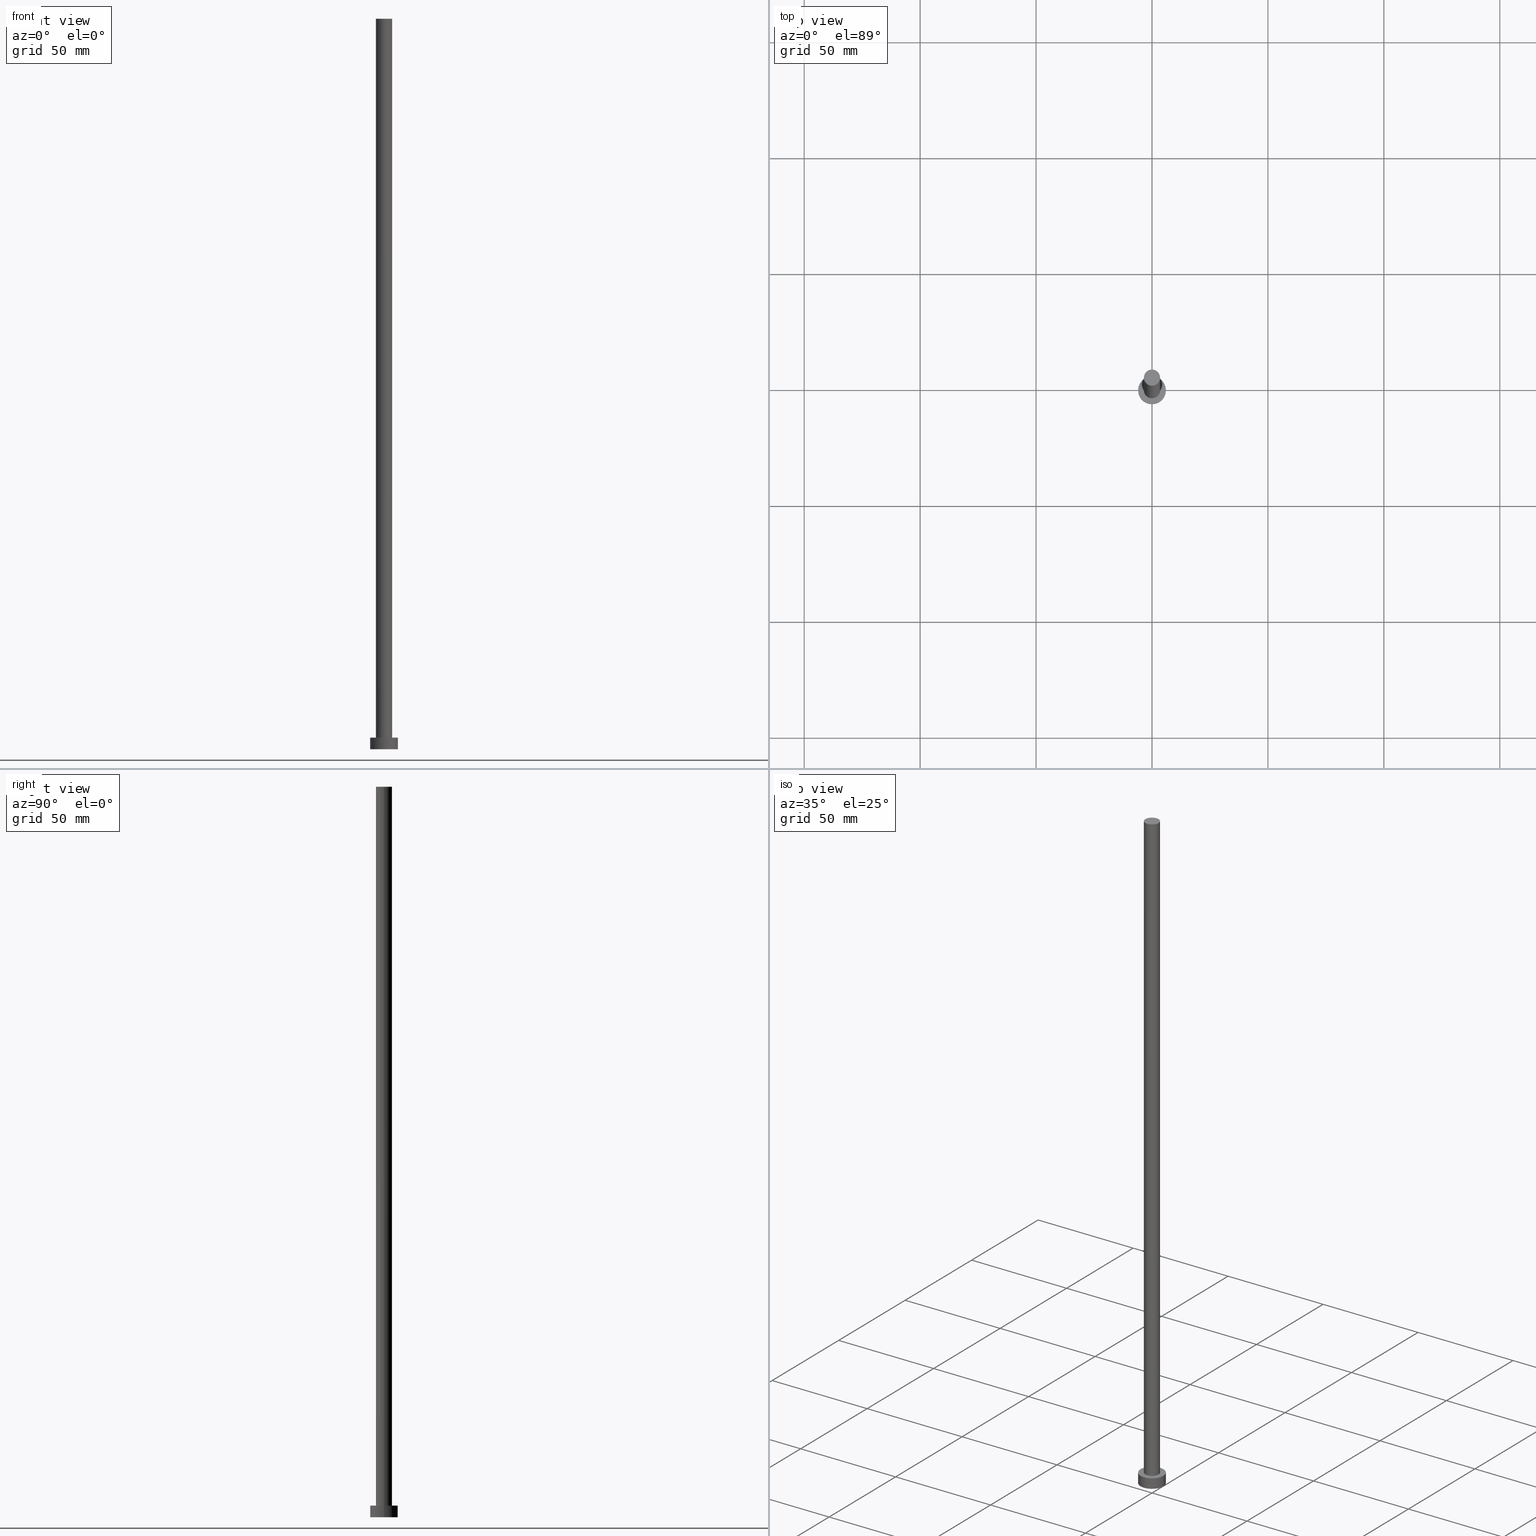
[diagram: canonical four-view strip — front | top / right | iso, engineering-drawing reading convention]
A machine part, canonical four-view strip (front | top / right | iso — engineering-drawing reading convention). The complete STEP part file that produces these views, byte-faithful:
ISO-10303-21;
HEADER;
FILE_DESCRIPTION (( 'STEP AP203' ),
    '1' );
FILE_NAME ('7363.STEP',
    '2023-02-13T11:46:08',
    ( '' ),
    ( '' ),
    'SwSTEP 2.0',
    'SolidWorks 2019',
    '' );
FILE_SCHEMA (( 'CONFIG_CONTROL_DESIGN' ));
ENDSEC;

DATA;
#1 = EDGE_CURVE ( 'NONE', #251, #157, #139, .T. ) ;
#2 = FACE_OUTER_BOUND ( 'NONE', #189, .T. ) ;
#3 = DIRECTION ( 'NONE',  ( 0.000000000000000000, 0.000000000000000000, 1.000000000000000000 ) ) ;
#4 = APPROVAL ( #244, 'NEUR�EN�' ) ;
#5 =( NAMED_UNIT ( * ) PLANE_ANGLE_UNIT ( ) SI_UNIT ( $, .RADIAN. ) );
#6 = CARTESIAN_POINT ( 'NONE',  ( 0.000000000000000000, 0.000000000000000000, 315.0000000000000000 ) ) ;
#7 = PERSON_AND_ORGANIZATION_ROLE ( 'design_supplier' ) ;
#8 = EDGE_CURVE ( 'NONE', #138, #192, #212, .T. ) ;
#9 = PERSON_AND_ORGANIZATION ( #95, #82 ) ;
#10 = ORIENTED_EDGE ( 'NONE', *, *, #74, .F. ) ;
#11 = ADVANCED_FACE ( 'NONE', ( #99 ), #143, .F. ) ;
#12 = DATE_TIME_ROLE ( 'creation_date' ) ;
#13 = FACE_BOUND ( 'NONE', #51, .T. ) ;
#14 = CARTESIAN_POINT ( 'NONE',  ( 3.500000000000000000, 4.286263797015736595E-16, 315.0000000000000000 ) ) ;
#15 = CARTESIAN_POINT ( 'NONE',  ( -3.500000000000000000, 0.000000000000000000, 315.0000000000000000 ) ) ;
#16 = EDGE_CURVE ( 'NONE', #173, #39, #75, .T. ) ;
#17 = CIRCLE ( 'NONE', #122, 6.000000000000000888 ) ;
#18 = CARTESIAN_POINT ( 'NONE',  ( 0.000000000000000000, 0.000000000000000000, 0.000000000000000000 ) ) ;
#19 = DIRECTION ( 'NONE',  ( 0.000000000000000000, 0.000000000000000000, 1.000000000000000000 ) ) ;
#20 = ADVANCED_FACE ( 'NONE', ( #13, #213 ), #98, .T. ) ;
#21 = FACE_OUTER_BOUND ( 'NONE', #55, .T. ) ;
#22 = DIRECTION ( 'NONE',  ( 1.000000000000000000, 0.000000000000000000, 0.000000000000000000 ) ) ;
#23 = CIRCLE ( 'NONE', #31, 3.500000000000000000 ) ;
#24 = CYLINDRICAL_SURFACE ( 'NONE', #168, 6.000000000000000888 ) ;
#25 = DIRECTION ( 'NONE',  ( -0.000000000000000000, -0.000000000000000000, -1.000000000000000000 ) ) ;
#26 = COORDINATED_UNIVERSAL_TIME_OFFSET ( 1, 0, .AHEAD. ) ;
#27 = PERSON_AND_ORGANIZATION_ROLE ( 'creator' ) ;
#28 = COORDINATED_UNIVERSAL_TIME_OFFSET ( 1, 0, .AHEAD. ) ;
#29 = AXIS2_PLACEMENT_3D ( 'NONE', #231, #44, #42 ) ;
#30 = ORIENTED_EDGE ( 'NONE', *, *, #8, .F. ) ;
#31 = AXIS2_PLACEMENT_3D ( 'NONE', #164, #221, #59 ) ;
#32 = CALENDAR_DATE ( 2023, 13, 2 ) ;
#33 = ORIENTED_EDGE ( 'NONE', *, *, #16, .F. ) ;
#34 = CARTESIAN_POINT ( 'NONE',  ( 0.000000000000000000, 0.000000000000000000, 5.000000000000000000 ) ) ;
#35 = CARTESIAN_POINT ( 'NONE',  ( 0.000000000000000000, 0.000000000000000000, 315.0000000000000000 ) ) ;
#36 = CC_DESIGN_PERSON_AND_ORGANIZATION_ASSIGNMENT ( #47, #27, ( #209 ) ) ;
#37 = EDGE_LOOP ( 'NONE', ( #70, #176 ) ) ;
#38 = VERTEX_POINT ( 'NONE', #160 ) ;
#39 = VERTEX_POINT ( 'NONE', #118 ) ;
#40 = DIRECTION ( 'NONE',  ( -0.000000000000000000, -0.000000000000000000, -1.000000000000000000 ) ) ;
#41 = CC_DESIGN_DATE_AND_TIME_ASSIGNMENT ( #137, #12, ( #148 ) ) ;
#42 = DIRECTION ( 'NONE',  ( -1.000000000000000000, 0.000000000000000000, 0.000000000000000000 ) ) ;
#43 =( GEOMETRIC_REPRESENTATION_CONTEXT ( 3 ) GLOBAL_UNCERTAINTY_ASSIGNED_CONTEXT ( ( #104 ) ) GLOBAL_UNIT_ASSIGNED_CONTEXT ( ( #235, #5, #145 ) ) REPRESENTATION_CONTEXT ( 'NONE', 'WORKASPACE' ) );
#44 = DIRECTION ( 'NONE',  ( -0.000000000000000000, -0.000000000000000000, -1.000000000000000000 ) ) ;
#45 = DIRECTION ( 'NONE',  ( 0.000000000000000000, 0.000000000000000000, 1.000000000000000000 ) ) ;
#46 = EDGE_CURVE ( 'NONE', #192, #138, #101, .T. ) ;
#47 = PERSON_AND_ORGANIZATION ( #95, #82 ) ;
#48 = DATE_AND_TIME ( #151, #156 ) ;
#49 = AXIS2_PLACEMENT_3D ( 'NONE', #128, #185, #63 ) ;
#50 = DATE_AND_TIME ( #153, #113 ) ;
#51 = EDGE_LOOP ( 'NONE', ( #93, #229 ) ) ;
#52 = CARTESIAN_POINT ( 'NONE',  ( 0.000000000000000000, 0.000000000000000000, 0.000000000000000000 ) ) ;
#53 = EDGE_LOOP ( 'NONE', ( #135, #30 ) ) ;
#54 = LOCAL_TIME ( 12, 46, 8.000000000000000000, #28 ) ;
#55 = EDGE_LOOP ( 'NONE', ( #76, #250, #191, #140 ) ) ;
#56 = ORIENTED_EDGE ( 'NONE', *, *, #240, .T. ) ;
#57 = ADVANCED_BREP_SHAPE_REPRESENTATION ( '7363', ( #249, #159 ), #43 ) ;
#58 = DIRECTION ( 'NONE',  ( 1.000000000000000000, 0.000000000000000000, 0.000000000000000000 ) ) ;
#59 = DIRECTION ( 'NONE',  ( 1.000000000000000000, 0.000000000000000000, 0.000000000000000000 ) ) ;
#60 = CARTESIAN_POINT ( 'NONE',  ( 6.000000000000000888, 7.347880794884120722E-16, 5.000000000000000000 ) ) ;
#61 = APPLICATION_PROTOCOL_DEFINITION ( 'international standard', 'config_control_design', 1994, #182 ) ;
#62 = AXIS2_PLACEMENT_3D ( 'NONE', #78, #45, #65 ) ;
#63 = DIRECTION ( 'NONE',  ( -1.000000000000000000, 0.000000000000000000, 0.000000000000000000 ) ) ;
#64 = APPROVAL_PERSON_ORGANIZATION ( #9, #225, #187 ) ;
#65 = DIRECTION ( 'NONE',  ( 1.000000000000000000, 0.000000000000000000, 0.000000000000000000 ) ) ;
#66 = EDGE_CURVE ( 'NONE', #208, #138, #161, .T. ) ;
#67 = APPROVAL_DATE_TIME ( #48, #4 ) ;
#68 = VECTOR ( 'NONE', #181, 1000.000000000000000 ) ;
#69 = CC_DESIGN_APPROVAL ( #225, ( #148 ) ) ;
#70 = ORIENTED_EDGE ( 'NONE', *, *, #71, .T. ) ;
#71 = EDGE_CURVE ( 'NONE', #38, #208, #86, .T. ) ;
#72 = DIRECTION ( 'NONE',  ( 0.000000000000000000, 0.000000000000000000, 1.000000000000000000 ) ) ;
#73 = ORIENTED_EDGE ( 'NONE', *, *, #66, .T. ) ;
#74 = EDGE_CURVE ( 'NONE', #251, #173, #230, .T. ) ;
#75 = LINE ( 'NONE', #14, #68 ) ;
#76 = ORIENTED_EDGE ( 'NONE', *, *, #124, .F. ) ;
#77 = CC_DESIGN_APPROVAL ( #4, ( #209 ) ) ;
#78 = CARTESIAN_POINT ( 'NONE',  ( 0.000000000000000000, 0.000000000000000000, 5.000000000000000000 ) ) ;
#79 = DIRECTION ( 'NONE',  ( -1.000000000000000000, 0.000000000000000000, 0.000000000000000000 ) ) ;
#80 = ADVANCED_FACE ( 'NONE', ( #193 ), #94, .T. ) ;
#81 = CARTESIAN_POINT ( 'NONE',  ( 0.000000000000000000, 0.000000000000000000, 315.0000000000000000 ) ) ;
#82 = ORGANIZATION ( 'NEUR�EN�', 'NEUR�EN�', '' ) ;
#83 = ADVANCED_FACE ( 'NONE', ( #21 ), #109, .T. ) ;
#84 = CARTESIAN_POINT ( 'NONE',  ( 3.500000000000000000, 4.286263797015736595E-16, 315.0000000000000000 ) ) ;
#85 = PERSON_AND_ORGANIZATION ( #95, #82 ) ;
#86 = CIRCLE ( 'NONE', #167, 6.000000000000000888 ) ;
#87 = SHAPE_DEFINITION_REPRESENTATION ( #111, #57 ) ;
#88 = AXIS2_PLACEMENT_3D ( 'NONE', #81, #166, #203 ) ;
#89 = DATE_AND_TIME ( #110, #91 ) ;
#90 = ORIENTED_EDGE ( 'NONE', *, *, #124, .T. ) ;
#91 = LOCAL_TIME ( 12, 46, 8.000000000000000000, #186 ) ;
#92 = AXIS2_PLACEMENT_3D ( 'NONE', #6, #149, #100 ) ;
#93 = ORIENTED_EDGE ( 'NONE', *, *, #108, .F. ) ;
#94 = CYLINDRICAL_SURFACE ( 'NONE', #29, 6.000000000000000888 ) ;
#95 = PERSON ( 'NEUR�EN�', 'NEUR�EN�', 'NEUR�EN�', ('NEUR�EN�'), ('NEUR�EN�'), ('NEUR�EN�') ) ;
#96 = DIRECTION ( 'NONE',  ( 1.000000000000000000, 0.000000000000000000, -0.000000000000000000 ) ) ;
#97 = CC_DESIGN_PERSON_AND_ORGANIZATION_ASSIGNMENT ( #171, #223, ( #148 ) ) ;
#98 = PLANE ( 'NONE',  #130 ) ;
#99 = FACE_OUTER_BOUND ( 'NONE', #53, .T. ) ;
#100 = DIRECTION ( 'NONE',  ( 1.000000000000000000, 0.000000000000000000, 0.000000000000000000 ) ) ;
#101 = CIRCLE ( 'NONE', #242, 6.000000000000000888 ) ;
#102 = CARTESIAN_POINT ( 'NONE',  ( 6.000000000000000888, 7.347880794884120722E-16, 0.000000000000000000 ) ) ;
#103 = CC_DESIGN_DATE_AND_TIME_ASSIGNMENT ( #89, #226, ( #243 ) ) ;
#104 = UNCERTAINTY_MEASURE_WITH_UNIT (LENGTH_MEASURE( 1.000000000000000082E-05 ), #235, 'distance_accuracy_value', 'NONE');
#105 = FACE_OUTER_BOUND ( 'NONE', #115, .T. ) ;
#106 = CARTESIAN_POINT ( 'NONE',  ( -3.500000000000000000, 0.000000000000000000, 315.0000000000000000 ) ) ;
#107 = AXIS2_PLACEMENT_3D ( 'NONE', #195, #19, #121 ) ;
#108 = EDGE_CURVE ( 'NONE', #157, #39, #218, .T. ) ;
#109 = CYLINDRICAL_SURFACE ( 'NONE', #177, 3.500000000000000000 ) ;
#110 = CALENDAR_DATE ( 2023, 13, 2 ) ;
#111 = PRODUCT_DEFINITION_SHAPE ( 'NONE', 'NONE',  #148 ) ;
#112 = PERSON_AND_ORGANIZATION ( #95, #82 ) ;
#113 = LOCAL_TIME ( 12, 46, 8.000000000000000000, #152 ) ;
#114 = DATE_AND_TIME ( #32, #54 ) ;
#115 = EDGE_LOOP ( 'NONE', ( #33, #10, #198, #120 ) ) ;
#116 = PERSON_AND_ORGANIZATION ( #95, #82 ) ;
#117 = ADVANCED_FACE ( 'NONE', ( #105 ), #219, .T. ) ;
#118 = CARTESIAN_POINT ( 'NONE',  ( 3.500000000000000000, 4.286263797015736595E-16, 5.000000000000000000 ) ) ;
#119 = DIRECTION ( 'NONE',  ( 1.000000000000000000, 0.000000000000000000, 0.000000000000000000 ) ) ;
#120 = ORIENTED_EDGE ( 'NONE', *, *, #108, .T. ) ;
#121 = DIRECTION ( 'NONE',  ( 1.000000000000000000, 0.000000000000000000, 0.000000000000000000 ) ) ;
#122 = AXIS2_PLACEMENT_3D ( 'NONE', #183, #3, #126 ) ;
#123 = DIRECTION ( 'NONE',  ( -0.000000000000000000, -0.000000000000000000, -1.000000000000000000 ) ) ;
#124 = EDGE_CURVE ( 'NONE', #173, #251, #247, .T. ) ;
#125 = AXIS2_PLACEMENT_3D ( 'NONE', #35, #216, #119 ) ;
#126 = DIRECTION ( 'NONE',  ( 1.000000000000000000, 0.000000000000000000, 0.000000000000000000 ) ) ;
#127 = DESIGN_CONTEXT ( 'detailed design', #132, 'design' ) ;
#128 = CARTESIAN_POINT ( 'NONE',  ( 0.000000000000000000, 0.000000000000000000, 315.0000000000000000 ) ) ;
#129 = PLANE ( 'NONE',  #88 ) ;
#130 = AXIS2_PLACEMENT_3D ( 'NONE', #162, #178, #253 ) ;
#131 = COORDINATED_UNIVERSAL_TIME_OFFSET ( 1, 0, .AHEAD. ) ;
#132 = APPLICATION_CONTEXT ( 'configuration controlled 3d designs of mechanical parts and assemblies' ) ;
#133 = MECHANICAL_CONTEXT ( 'NONE', #182, 'mechanical' ) ;
#134 = APPROVAL_STATUS ( 'not_yet_approved' ) ;
#135 = ORIENTED_EDGE ( 'NONE', *, *, #46, .F. ) ;
#136 = PERSON_AND_ORGANIZATION ( #95, #82 ) ;
#137 = DATE_AND_TIME ( #224, #252 ) ;
#138 = VERTEX_POINT ( 'NONE', #102 ) ;
#139 = LINE ( 'NONE', #15, #238 ) ;
#140 = ORIENTED_EDGE ( 'NONE', *, *, #1, .F. ) ;
#141 = ORIENTED_EDGE ( 'NONE', *, *, #66, .F. ) ;
#142 = CLOSED_SHELL ( 'NONE', ( #83, #80, #204, #20, #11, #117, #222 ) ) ;
#143 = PLANE ( 'NONE',  #234 ) ;
#144 = CC_DESIGN_SECURITY_CLASSIFICATION ( #243, ( #209 ) ) ;
#145 =( NAMED_UNIT ( * ) SI_UNIT ( $, .STERADIAN. ) SOLID_ANGLE_UNIT ( ) );
#146 = CARTESIAN_POINT ( 'NONE',  ( 0.000000000000000000, 0.000000000000000000, 5.000000000000000000 ) ) ;
#147 = DIRECTION ( 'NONE',  ( 0.000000000000000000, 0.000000000000000000, 1.000000000000000000 ) ) ;
#148 = PRODUCT_DEFINITION ( 'NEZN�M�', '', #209, #127 ) ;
#149 = DIRECTION ( 'NONE',  ( 0.000000000000000000, 0.000000000000000000, 1.000000000000000000 ) ) ;
#150 = CARTESIAN_POINT ( 'NONE',  ( -6.000000000000000888, 0.000000000000000000, 5.000000000000000000 ) ) ;
#151 = CALENDAR_DATE ( 2023, 13, 2 ) ;
#152 = COORDINATED_UNIVERSAL_TIME_OFFSET ( 1, 0, .AHEAD. ) ;
#153 = CALENDAR_DATE ( 2023, 13, 2 ) ;
#154 = PERSON_AND_ORGANIZATION ( #95, #82 ) ;
#155 = EDGE_CURVE ( 'NONE', #39, #157, #23, .T. ) ;
#156 = LOCAL_TIME ( 12, 46, 8.000000000000000000, #26 ) ;
#157 = VERTEX_POINT ( 'NONE', #199 ) ;
#158 = ORIENTED_EDGE ( 'NONE', *, *, #197, .F. ) ;
#159 = AXIS2_PLACEMENT_3D ( 'NONE', #201, #147, #22 ) ;
#160 = CARTESIAN_POINT ( 'NONE',  ( -6.000000000000000888, 0.000000000000000000, 5.000000000000000000 ) ) ;
#161 = LINE ( 'NONE', #215, #200 ) ;
#162 = CARTESIAN_POINT ( 'NONE',  ( 0.000000000000000000, 0.000000000000000000, 5.000000000000000000 ) ) ;
#163 = CC_DESIGN_APPROVAL ( #245, ( #243 ) ) ;
#164 = CARTESIAN_POINT ( 'NONE',  ( 0.000000000000000000, 0.000000000000000000, 5.000000000000000000 ) ) ;
#165 = FACE_OUTER_BOUND ( 'NONE', #211, .T. ) ;
#166 = DIRECTION ( 'NONE',  ( 0.000000000000000000, 0.000000000000000000, 1.000000000000000000 ) ) ;
#167 = AXIS2_PLACEMENT_3D ( 'NONE', #34, #233, #58 ) ;
#168 = AXIS2_PLACEMENT_3D ( 'NONE', #146, #184, #237 ) ;
#169 = PERSON_AND_ORGANIZATION_ROLE ( 'classification_officer' ) ;
#170 = SECURITY_CLASSIFICATION_LEVEL ( 'unclassified' ) ;
#171 = PERSON_AND_ORGANIZATION ( #95, #82 ) ;
#172 = APPLICATION_PROTOCOL_DEFINITION ( 'international standard', 'config_control_design', 1994, #132 ) ;
#173 = VERTEX_POINT ( 'NONE', #84 ) ;
#174 = ORIENTED_EDGE ( 'NONE', *, *, #8, .T. ) ;
#175 = ORIENTED_EDGE ( 'NONE', *, *, #46, .T. ) ;
#176 = ORIENTED_EDGE ( 'NONE', *, *, #197, .T. ) ;
#177 = AXIS2_PLACEMENT_3D ( 'NONE', #202, #40, #79 ) ;
#178 = DIRECTION ( 'NONE',  ( 0.000000000000000000, 0.000000000000000000, 1.000000000000000000 ) ) ;
#179 = DIRECTION ( 'NONE',  ( 1.000000000000000000, 0.000000000000000000, 0.000000000000000000 ) ) ;
#180 = CC_DESIGN_PERSON_AND_ORGANIZATION_ASSIGNMENT ( #154, #7, ( #209 ) ) ;
#181 = DIRECTION ( 'NONE',  ( -0.000000000000000000, -0.000000000000000000, -1.000000000000000000 ) ) ;
#182 = APPLICATION_CONTEXT ( 'configuration controlled 3d designs of mechanical parts and assemblies' ) ;
#183 = CARTESIAN_POINT ( 'NONE',  ( 0.000000000000000000, 0.000000000000000000, 5.000000000000000000 ) ) ;
#184 = DIRECTION ( 'NONE',  ( -0.000000000000000000, -0.000000000000000000, -1.000000000000000000 ) ) ;
#185 = DIRECTION ( 'NONE',  ( -0.000000000000000000, -0.000000000000000000, -1.000000000000000000 ) ) ;
#186 = COORDINATED_UNIVERSAL_TIME_OFFSET ( 1, 0, .AHEAD. ) ;
#187 = APPROVAL_ROLE ( '' ) ;
#188 = PERSON_AND_ORGANIZATION_ROLE ( 'design_owner' ) ;
#189 = EDGE_LOOP ( 'NONE', ( #141, #227, #56, #175 ) ) ;
#190 = APPROVAL_DATE_TIME ( #50, #225 ) ;
#191 = ORIENTED_EDGE ( 'NONE', *, *, #155, .T. ) ;
#192 = VERTEX_POINT ( 'NONE', #220 ) ;
#193 = FACE_OUTER_BOUND ( 'NONE', #255, .T. ) ;
#194 = ORIENTED_EDGE ( 'NONE', *, *, #240, .F. ) ;
#195 = CARTESIAN_POINT ( 'NONE',  ( 0.000000000000000000, 0.000000000000000000, 0.000000000000000000 ) ) ;
#196 = VECTOR ( 'NONE', #25, 1000.000000000000000 ) ;
#197 = EDGE_CURVE ( 'NONE', #208, #38, #17, .T. ) ;
#198 = ORIENTED_EDGE ( 'NONE', *, *, #1, .T. ) ;
#199 = CARTESIAN_POINT ( 'NONE',  ( -3.500000000000000000, 0.000000000000000000, 5.000000000000000000 ) ) ;
#200 = VECTOR ( 'NONE', #232, 1000.000000000000000 ) ;
#201 = CARTESIAN_POINT ( 'NONE',  ( 0.000000000000000000, 0.000000000000000000, 0.000000000000000000 ) ) ;
#202 = CARTESIAN_POINT ( 'NONE',  ( 0.000000000000000000, 0.000000000000000000, 315.0000000000000000 ) ) ;
#203 = DIRECTION ( 'NONE',  ( 1.000000000000000000, 0.000000000000000000, -0.000000000000000000 ) ) ;
#204 = ADVANCED_FACE ( 'NONE', ( #2 ), #24, .T. ) ;
#205 = PRODUCT ( '7363', '7363', '', ( #133 ) ) ;
#206 = APPROVAL_ROLE ( '' ) ;
#207 = CC_DESIGN_PERSON_AND_ORGANIZATION_ASSIGNMENT ( #112, #169, ( #243 ) ) ;
#208 = VERTEX_POINT ( 'NONE', #60 ) ;
#209 = PRODUCT_DEFINITION_FORMATION_WITH_SPECIFIED_SOURCE ( 'LIBOVOLN�', '', #205, .NOT_KNOWN. ) ;
#210 = APPROVAL_ROLE ( '' ) ;
#211 = EDGE_LOOP ( 'NONE', ( #214, #90 ) ) ;
#212 = CIRCLE ( 'NONE', #107, 6.000000000000000888 ) ;
#213 = FACE_OUTER_BOUND ( 'NONE', #37, .T. ) ;
#214 = ORIENTED_EDGE ( 'NONE', *, *, #74, .T. ) ;
#215 = CARTESIAN_POINT ( 'NONE',  ( 6.000000000000000888, 7.347880794884120722E-16, 5.000000000000000000 ) ) ;
#216 = DIRECTION ( 'NONE',  ( 0.000000000000000000, 0.000000000000000000, 1.000000000000000000 ) ) ;
#217 = APPROVAL_PERSON_ORGANIZATION ( #116, #4, #210 ) ;
#218 = CIRCLE ( 'NONE', #62, 3.500000000000000000 ) ;
#219 = CYLINDRICAL_SURFACE ( 'NONE', #49, 3.500000000000000000 ) ;
#220 = CARTESIAN_POINT ( 'NONE',  ( -6.000000000000000888, 0.000000000000000000, 0.000000000000000000 ) ) ;
#221 = DIRECTION ( 'NONE',  ( 0.000000000000000000, 0.000000000000000000, 1.000000000000000000 ) ) ;
#222 = ADVANCED_FACE ( 'NONE', ( #165 ), #129, .T. ) ;
#223 = PERSON_AND_ORGANIZATION_ROLE ( 'creator' ) ;
#224 = CALENDAR_DATE ( 2023, 13, 2 ) ;
#225 = APPROVAL ( #246, 'NEUR�EN�' ) ;
#226 = DATE_TIME_ROLE ( 'classification_date' ) ;
#227 = ORIENTED_EDGE ( 'NONE', *, *, #71, .F. ) ;
#228 = PRODUCT_RELATED_PRODUCT_CATEGORY ( 'detail', '', ( #205 ) ) ;
#229 = ORIENTED_EDGE ( 'NONE', *, *, #155, .F. ) ;
#230 = CIRCLE ( 'NONE', #125, 3.500000000000000000 ) ;
#231 = CARTESIAN_POINT ( 'NONE',  ( 0.000000000000000000, 0.000000000000000000, 5.000000000000000000 ) ) ;
#232 = DIRECTION ( 'NONE',  ( -0.000000000000000000, -0.000000000000000000, -1.000000000000000000 ) ) ;
#233 = DIRECTION ( 'NONE',  ( 0.000000000000000000, 0.000000000000000000, 1.000000000000000000 ) ) ;
#234 = AXIS2_PLACEMENT_3D ( 'NONE', #18, #254, #96 ) ;
#235 =( LENGTH_UNIT ( ) NAMED_UNIT ( * ) SI_UNIT ( .MILLI., .METRE. ) );
#236 = APPROVAL_PERSON_ORGANIZATION ( #85, #245, #206 ) ;
#237 = DIRECTION ( 'NONE',  ( -1.000000000000000000, 0.000000000000000000, 0.000000000000000000 ) ) ;
#238 = VECTOR ( 'NONE', #123, 1000.000000000000000 ) ;
#239 = LINE ( 'NONE', #150, #196 ) ;
#240 = EDGE_CURVE ( 'NONE', #38, #192, #239, .T. ) ;
#241 = APPROVAL_DATE_TIME ( #114, #245 ) ;
#242 = AXIS2_PLACEMENT_3D ( 'NONE', #52, #72, #179 ) ;
#243 = SECURITY_CLASSIFICATION ( '', '', #170 ) ;
#244 = APPROVAL_STATUS ( 'not_yet_approved' ) ;
#245 = APPROVAL ( #134, 'NEUR�EN�' ) ;
#246 = APPROVAL_STATUS ( 'not_yet_approved' ) ;
#247 = CIRCLE ( 'NONE', #92, 3.500000000000000000 ) ;
#248 = CC_DESIGN_PERSON_AND_ORGANIZATION_ASSIGNMENT ( #136, #188, ( #205 ) ) ;
#249 = MANIFOLD_SOLID_BREP ( 'P�idat vysunut�m3', #142 ) ;
#250 = ORIENTED_EDGE ( 'NONE', *, *, #16, .T. ) ;
#251 = VERTEX_POINT ( 'NONE', #106 ) ;
#252 = LOCAL_TIME ( 12, 46, 8.000000000000000000, #131 ) ;
#253 = DIRECTION ( 'NONE',  ( 1.000000000000000000, 0.000000000000000000, -0.000000000000000000 ) ) ;
#254 = DIRECTION ( 'NONE',  ( 0.000000000000000000, 0.000000000000000000, 1.000000000000000000 ) ) ;
#255 = EDGE_LOOP ( 'NONE', ( #158, #73, #174, #194 ) ) ;
ENDSEC;
END-ISO-10303-21;
